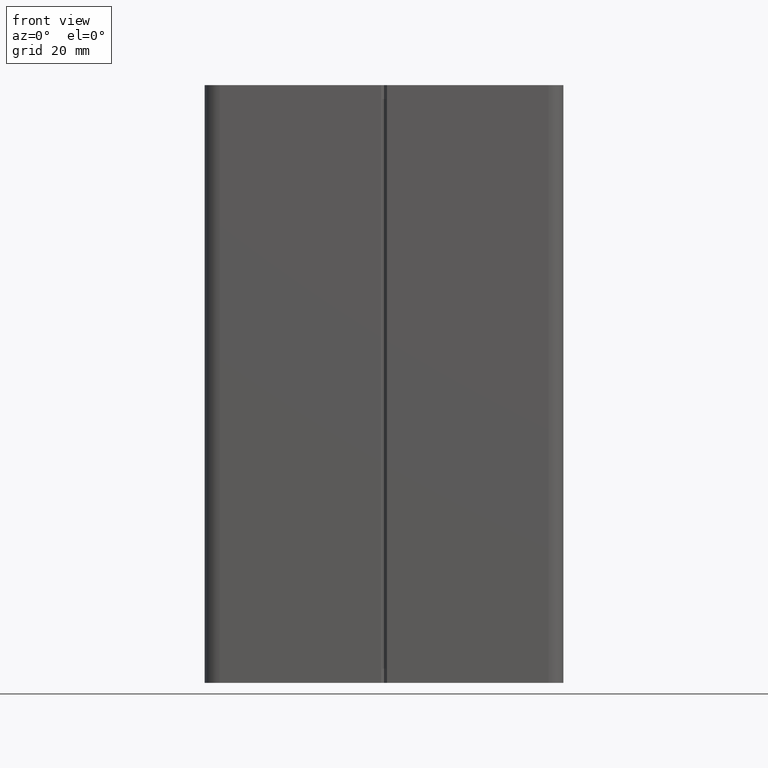
[diagram: clean part render]
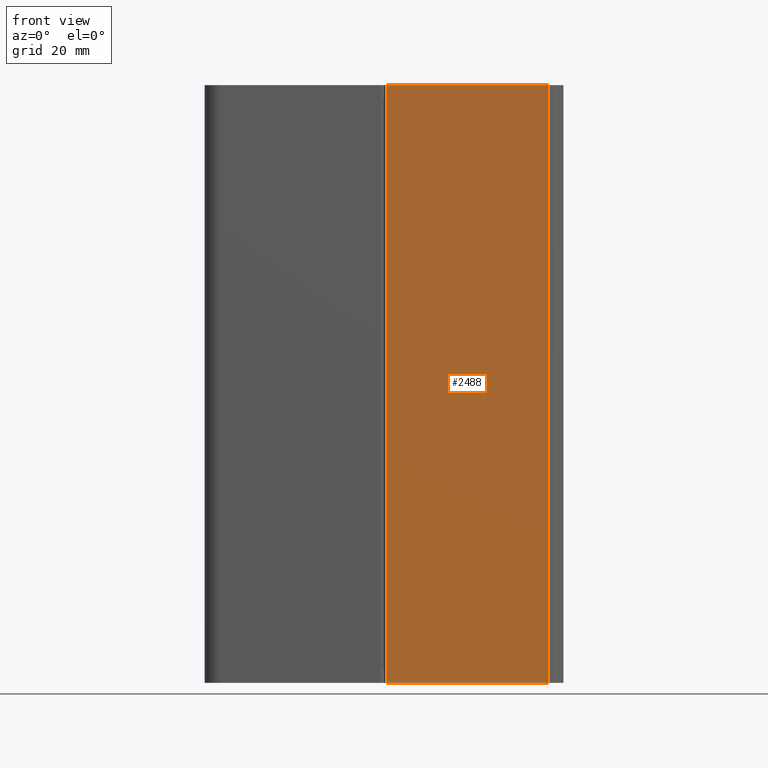
[diagram: same view with one face highlighted and labeled with its STEP entity id]
A machine part, front view. The second image highlights one B-rep face of the part: STEP entity #2488.
In plain terms, the highlighted planar face has unit normal (0, 1, 0).
Its self-contained STEP definition (entity closure, byte-faithful):
#211=CARTESIAN_POINT('',(30.511985819744346,-0.019109951493249,100.0));
#212=VERTEX_POINT('',#211);
#219=CARTESIAN_POINT('',(57.511985819731493,-0.019109951493249,100.0));
#220=VERTEX_POINT('',#219);
#221=CARTESIAN_POINT('',(30.511985819744346,-0.019109951493249,100.0));
#222=DIRECTION('',(1.0,0.0,0.0));
#223=VECTOR('',#222,26.999999999987146);
#224=LINE('',#221,#223);
#225=EDGE_CURVE('',#212,#220,#224,.T.);
#1097=CARTESIAN_POINT('',(57.511985819731493,-0.019109951493249,0.0));
#1098=VERTEX_POINT('',#1097);
#1106=CARTESIAN_POINT('',(30.511985819744346,-0.019109951493249,0.0));
#1107=VERTEX_POINT('',#1106);
#1108=CARTESIAN_POINT('',(30.511985819744346,-0.019109951493249,0.0));
#1109=DIRECTION('',(1.0,0.0,0.0));
#1110=VECTOR('',#1109,26.999999999987146);
#1111=LINE('',#1108,#1110);
#1112=EDGE_CURVE('',#1107,#1098,#1111,.T.);
#2461=CARTESIAN_POINT('',(30.511985819744346,-0.019109951493249,100.0));
#2462=DIRECTION('',(0.0,0.0,-1.0));
#2463=VECTOR('',#2462,100.0);
#2464=LINE('',#2461,#2463);
#2465=EDGE_CURVE('',#212,#1107,#2464,.T.);
#2472=CARTESIAN_POINT('',(29.161985819744988,-0.019109951493249,-5.0));
#2473=DIRECTION('',(0.0,1.0,0.0));
#2474=DIRECTION('',(0.0,0.0,1.0));
#2475=AXIS2_PLACEMENT_3D('',#2472,#2473,#2474);
#2476=PLANE('',#2475);
#2477=ORIENTED_EDGE('',*,*,#1112,.T.);
#2478=CARTESIAN_POINT('',(57.511985819731493,-0.019109951493249,100.0));
#2479=DIRECTION('',(0.0,0.0,-1.0));
#2480=VECTOR('',#2479,100.0);
#2481=LINE('',#2478,#2480);
#2482=EDGE_CURVE('',#220,#1098,#2481,.T.);
#2483=ORIENTED_EDGE('',*,*,#2482,.F.);
#2484=ORIENTED_EDGE('',*,*,#225,.F.);
#2485=ORIENTED_EDGE('',*,*,#2465,.T.);
#2486=EDGE_LOOP('',(#2477,#2483,#2484,#2485));
#2487=FACE_OUTER_BOUND('',#2486,.T.);
#2488=ADVANCED_FACE('',(#2487),#2476,.F.);